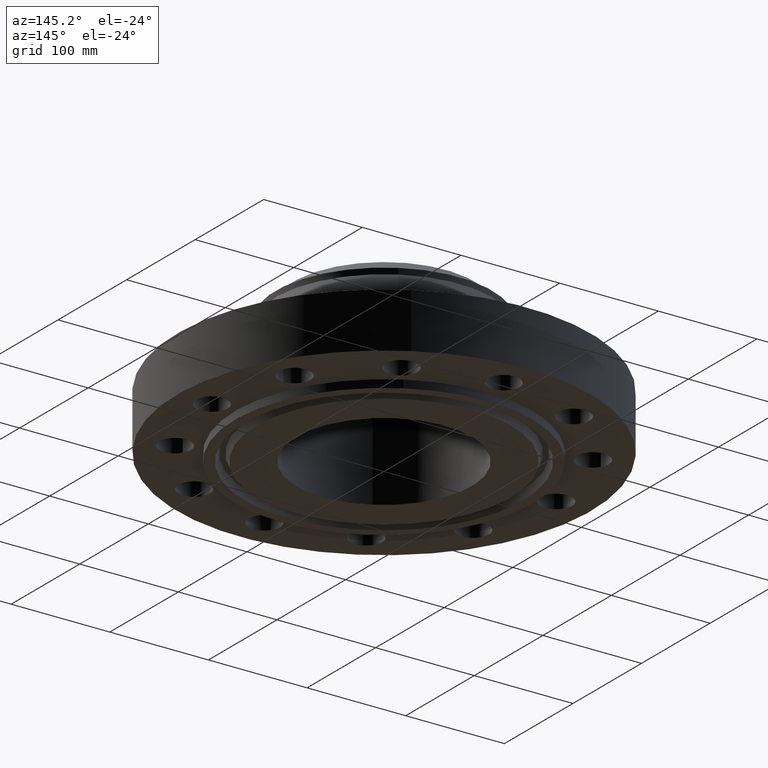
[diagram: clean part render]
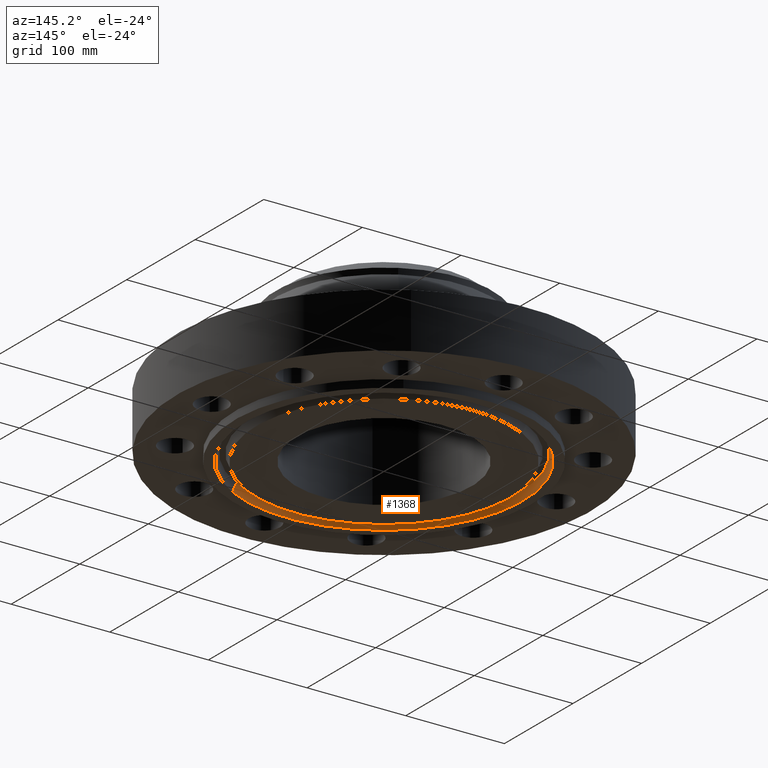
[diagram: same view with one face highlighted and labeled with its STEP entity id]
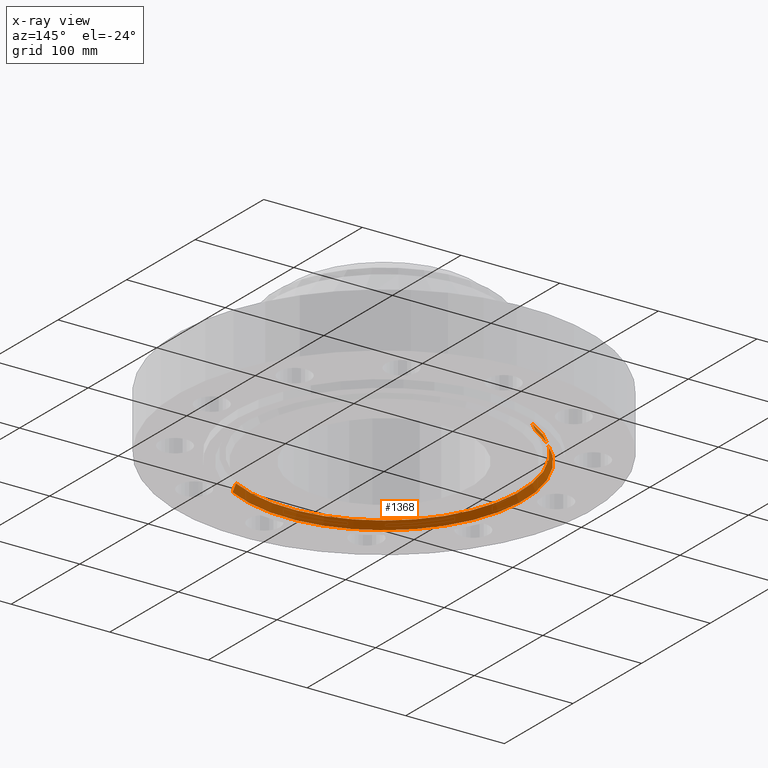
[diagram: x-ray of the same camera — body ghosted, the highlighted face saturated]
A machine part, auxiliary view. The second image highlights one B-rep face of the part: STEP entity #1368.
The next image is the same camera in x-ray: the body ghosted, the highlighted face saturated — about 0% of this face is hidden behind the body in this view.
In plain terms, the highlighted conical surface has half-angle 23 deg.
Its self-contained STEP definition (entity closure, byte-faithful):
#1267=AXIS2_PLACEMENT_3D('Circle Axis2P3D',#1265,#1266,$) ;
#1314=AXIS2_PLACEMENT_3D('Circle Axis2P3D',#1312,#1313,$) ;
#1350=AXIS2_PLACEMENT_3D('Cone Axis2P3D',#1347,#1348,#1349) ;
#1265=CARTESIAN_POINT('Axis2P3D Location',(0.,-2.23792987641E-015,-0.313000000001)) ;
#1269=CARTESIAN_POINT('Vertex',(2.65937346265,-4.86795047083,-0.313000000001)) ;
#1271=CARTESIAN_POINT('Vertex',(-2.65937346265,4.86795047083,-0.313000000001)) ;
#1312=CARTESIAN_POINT('Axis2P3D Location',(0.,0.,-0.0188873350169)) ;
#1316=CARTESIAN_POINT('Vertex',(-2.59952033905,4.75839006298,-0.0188873350169)) ;
#1318=CARTESIAN_POINT('Vertex',(2.59952033905,-4.75839006298,-0.0188873350169)) ;
#1347=CARTESIAN_POINT('Axis2P3D Location',(0.,0.,-0.0188873350169)) ;
#1352=CARTESIAN_POINT('Line Origine',(-2.62944690085,4.8131702669,-0.165943667509)) ;
#1357=CARTESIAN_POINT('Line Origine',(2.62944690085,-4.8131702669,-0.165943667509)) ;
#1266=DIRECTION('Axis2P3D Direction',(0.,0.,-0.0393700787402)) ;
#1313=DIRECTION('Axis2P3D Direction',(0.,0.,0.0393700787402)) ;
#1348=DIRECTION('Axis2P3D Direction',(-0.,-0.,-0.0393700787402)) ;
#1349=DIRECTION('Axis2P3D XDirection',(-0.0188750212049,0.0345504945626,0.)) ;
#1353=DIRECTION('Vector Direction',(-0.00737505833565,0.0134999537303,-0.0362403485611)) ;
#1358=DIRECTION('Vector Direction',(0.00737505833565,-0.0134999537303,-0.0362403485611)) ;
#1354=VECTOR('Line Direction',#1353,0.0393700787402) ;
#1359=VECTOR('Line Direction',#1358,0.0393700787402) ;
#1363=ORIENTED_EDGE('',*,*,#1273,.T.) ;
#1364=ORIENTED_EDGE('',*,*,#1356,.T.) ;
#1365=ORIENTED_EDGE('',*,*,#1320,.T.) ;
#1366=ORIENTED_EDGE('',*,*,#1361,.F.) ;
#1368=ADVANCED_FACE('PartBody',(#1367),#1351,.F.) ;
#1268=CIRCLE('generated circle',#1267,5.54700000002) ;
#1315=CIRCLE('generated circle',#1314,5.42215658061) ;
#1351=CONICAL_SURFACE('Cone',#1350,5.42215658061,0.401425727959) ;
#1273=EDGE_CURVE('',#1270,#1272,#1268,.T.) ;
#1320=EDGE_CURVE('',#1317,#1319,#1315,.T.) ;
#1356=EDGE_CURVE('',#1272,#1317,#1355,.F.) ;
#1361=EDGE_CURVE('',#1270,#1319,#1360,.F.) ;
#1362=EDGE_LOOP('',(#1363,#1364,#1365,#1366)) ;
#1367=FACE_OUTER_BOUND('',#1362,.T.) ;
#1355=LINE('Line',#1352,#1354) ;
#1360=LINE('Line',#1357,#1359) ;
#1270=VERTEX_POINT('',#1269) ;
#1272=VERTEX_POINT('',#1271) ;
#1317=VERTEX_POINT('',#1316) ;
#1319=VERTEX_POINT('',#1318) ;